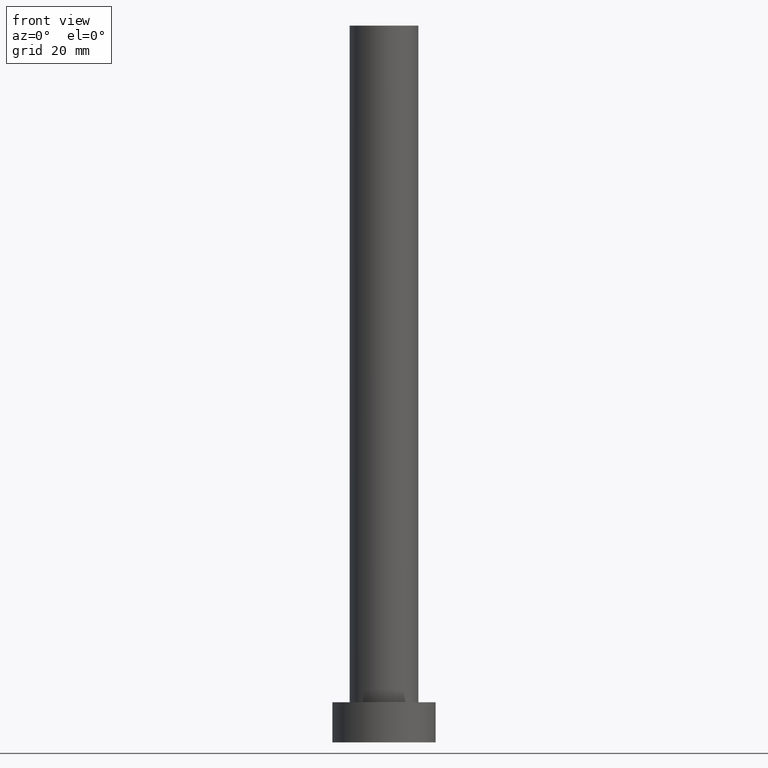
[diagram: clean part render]
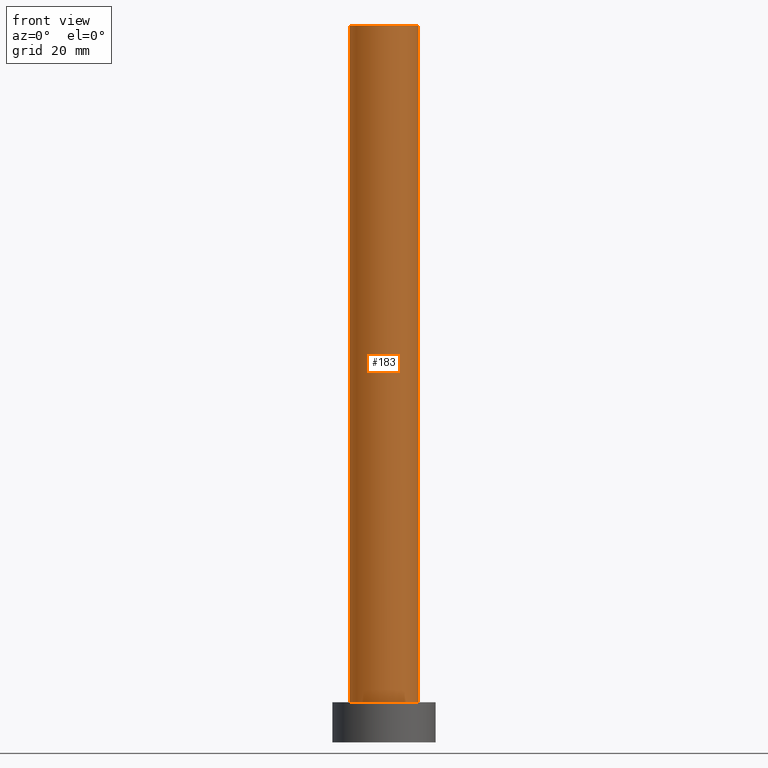
[diagram: same view with one face highlighted and labeled with its STEP entity id]
A machine part, front view. The second image highlights one B-rep face of the part: STEP entity #183.
In plain terms, the highlighted cylindrical surface (edge-blend (fillet) strip) has radius 6 mm, axis along (-0, -0, -1).
Its self-contained STEP definition (entity closure, byte-faithful):
#3 = CARTESIAN_POINT ( 'NONE',  ( -6.000000000000000888, 0.000000000000000000, 125.0000000000000000 ) ) ;
#5 = DIRECTION ( 'NONE',  ( -0.000000000000000000, -0.000000000000000000, -1.000000000000000000 ) ) ;
#12 = ORIENTED_EDGE ( 'NONE', *, *, #148, .F. ) ;
#16 = EDGE_CURVE ( 'NONE', #230, #59, #137, .T. ) ;
#17 = VERTEX_POINT ( 'NONE', #248 ) ;
#18 = AXIS2_PLACEMENT_3D ( 'NONE', #210, #175, #82 ) ;
#19 = CARTESIAN_POINT ( 'NONE',  ( 6.000000000000000888, 7.347880794884120722E-16, 125.0000000000000000 ) ) ;
#32 = CIRCLE ( 'NONE', #223, 6.000000000000000888 ) ;
#51 = EDGE_CURVE ( 'NONE', #59, #184, #215, .T. ) ;
#59 = VERTEX_POINT ( 'NONE', #102 ) ;
#81 = CARTESIAN_POINT ( 'NONE',  ( 0.000000000000000000, 0.000000000000000000, 125.0000000000000000 ) ) ;
#82 = DIRECTION ( 'NONE',  ( 1.000000000000000000, 0.000000000000000000, 0.000000000000000000 ) ) ;
#86 = VECTOR ( 'NONE', #126, 1000.000000000000000 ) ;
#87 = DIRECTION ( 'NONE',  ( -1.000000000000000000, 0.000000000000000000, 0.000000000000000000 ) ) ;
#102 = CARTESIAN_POINT ( 'NONE',  ( -6.000000000000000888, 0.000000000000000000, 7.000000000000000000 ) ) ;
#106 = CYLINDRICAL_SURFACE ( 'NONE', #165, 6.000000000000000888 ) ;
#118 = ORIENTED_EDGE ( 'NONE', *, *, #16, .T. ) ;
#120 = CARTESIAN_POINT ( 'NONE',  ( -6.000000000000000888, 0.000000000000000000, 125.0000000000000000 ) ) ;
#125 = DIRECTION ( 'NONE',  ( 0.000000000000000000, 0.000000000000000000, 1.000000000000000000 ) ) ;
#126 = DIRECTION ( 'NONE',  ( -0.000000000000000000, -0.000000000000000000, -1.000000000000000000 ) ) ;
#137 = LINE ( 'NONE', #120, #163 ) ;
#140 = EDGE_CURVE ( 'NONE', #230, #17, #32, .T. ) ;
#148 = EDGE_CURVE ( 'NONE', #17, #184, #159, .T. ) ;
#155 = DIRECTION ( 'NONE',  ( -0.000000000000000000, -0.000000000000000000, -1.000000000000000000 ) ) ;
#159 = LINE ( 'NONE', #19, #86 ) ;
#163 = VECTOR ( 'NONE', #155, 1000.000000000000000 ) ;
#165 = AXIS2_PLACEMENT_3D ( 'NONE', #178, #5, #87 ) ;
#167 = ORIENTED_EDGE ( 'NONE', *, *, #51, .T. ) ;
#169 = EDGE_LOOP ( 'NONE', ( #12, #173, #118, #167 ) ) ;
#173 = ORIENTED_EDGE ( 'NONE', *, *, #140, .F. ) ;
#175 = DIRECTION ( 'NONE',  ( 0.000000000000000000, 0.000000000000000000, 1.000000000000000000 ) ) ;
#178 = CARTESIAN_POINT ( 'NONE',  ( 0.000000000000000000, 0.000000000000000000, 125.0000000000000000 ) ) ;
#181 = CARTESIAN_POINT ( 'NONE',  ( 6.000000000000000888, 7.347880794884120722E-16, 7.000000000000000000 ) ) ;
#183 = ADVANCED_FACE ( 'NONE', ( #201 ), #106, .T. ) ;
#184 = VERTEX_POINT ( 'NONE', #181 ) ;
#195 = DIRECTION ( 'NONE',  ( 1.000000000000000000, 0.000000000000000000, 0.000000000000000000 ) ) ;
#201 = FACE_OUTER_BOUND ( 'NONE', #169, .T. ) ;
#210 = CARTESIAN_POINT ( 'NONE',  ( 0.000000000000000000, 0.000000000000000000, 7.000000000000000000 ) ) ;
#215 = CIRCLE ( 'NONE', #18, 6.000000000000000888 ) ;
#223 = AXIS2_PLACEMENT_3D ( 'NONE', #81, #125, #195 ) ;
#230 = VERTEX_POINT ( 'NONE', #3 ) ;
#248 = CARTESIAN_POINT ( 'NONE',  ( 6.000000000000000888, 7.347880794884120722E-16, 125.0000000000000000 ) ) ;